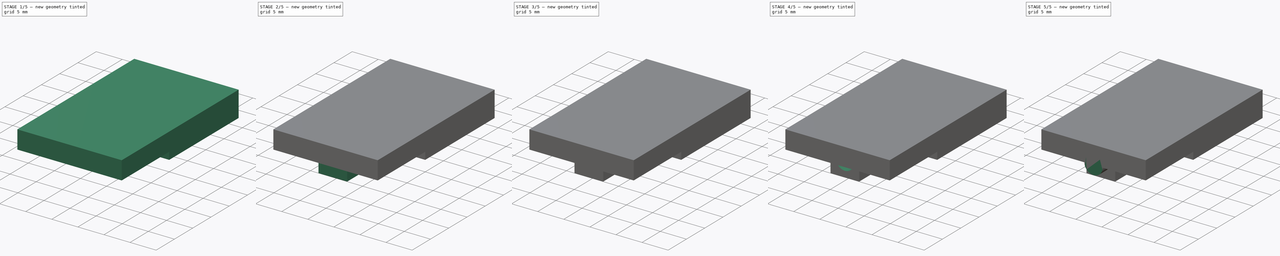
[diagram: build sequence overview — one tinted view per stage of 5, left to right]
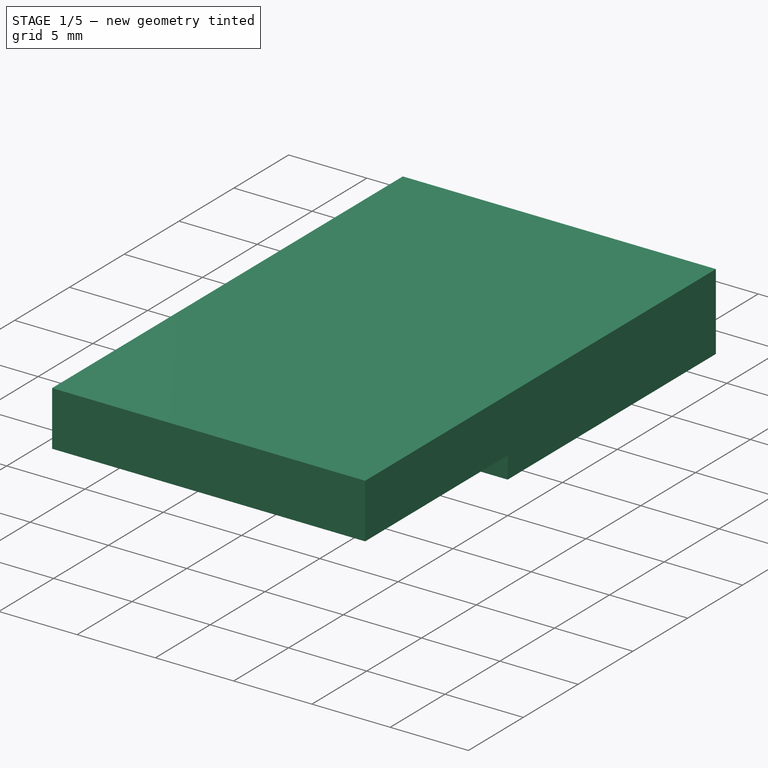
[diagram: stage 1 of 5 — iso view after this stage's code; geometry added in this stage tinted green]
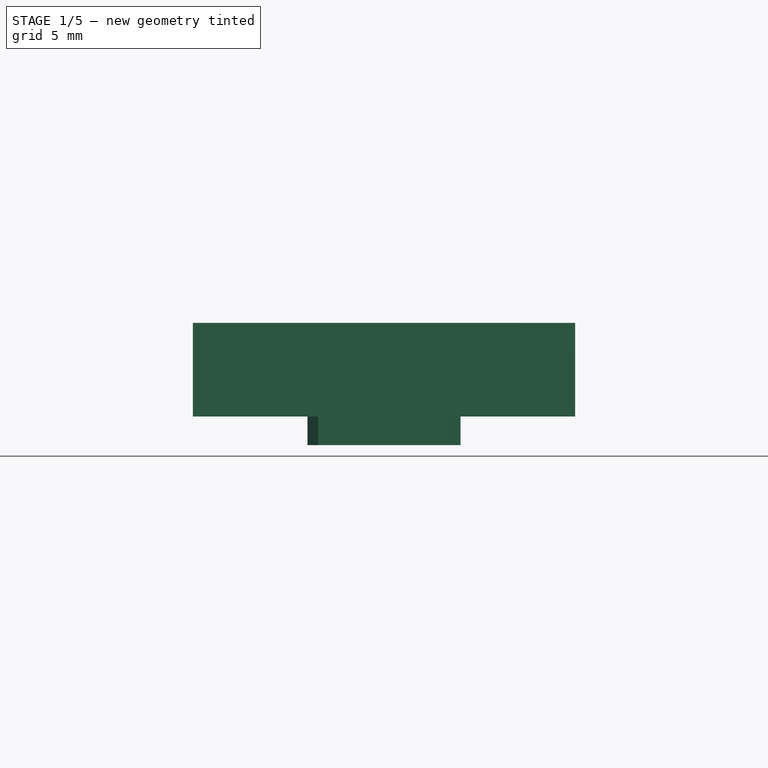
[diagram: stage 1 of 5 — front view after this stage's code; geometry added in this stage tinted green]
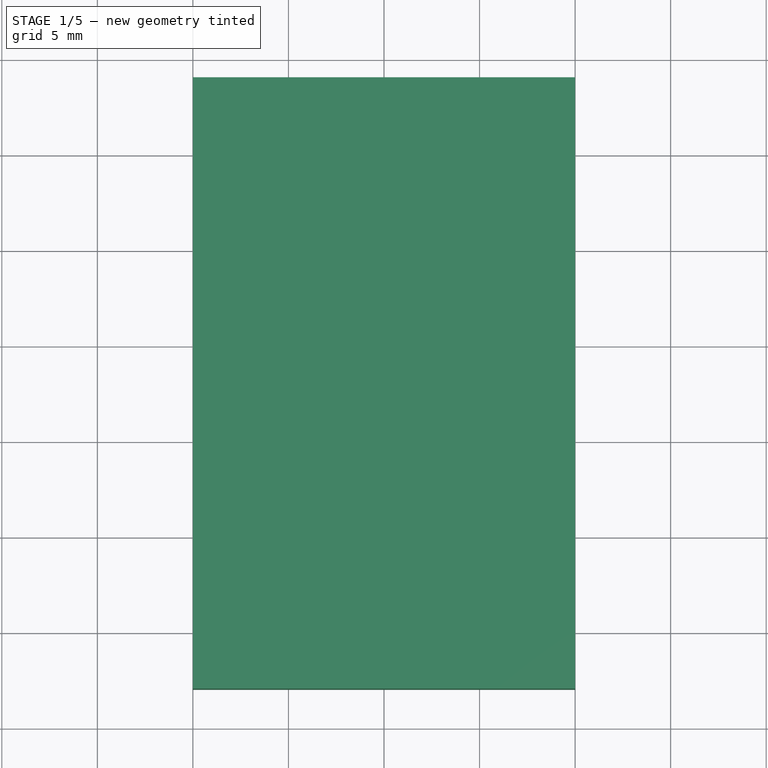
[diagram: stage 1 of 5 — top view after this stage's code; geometry added in this stage tinted green]
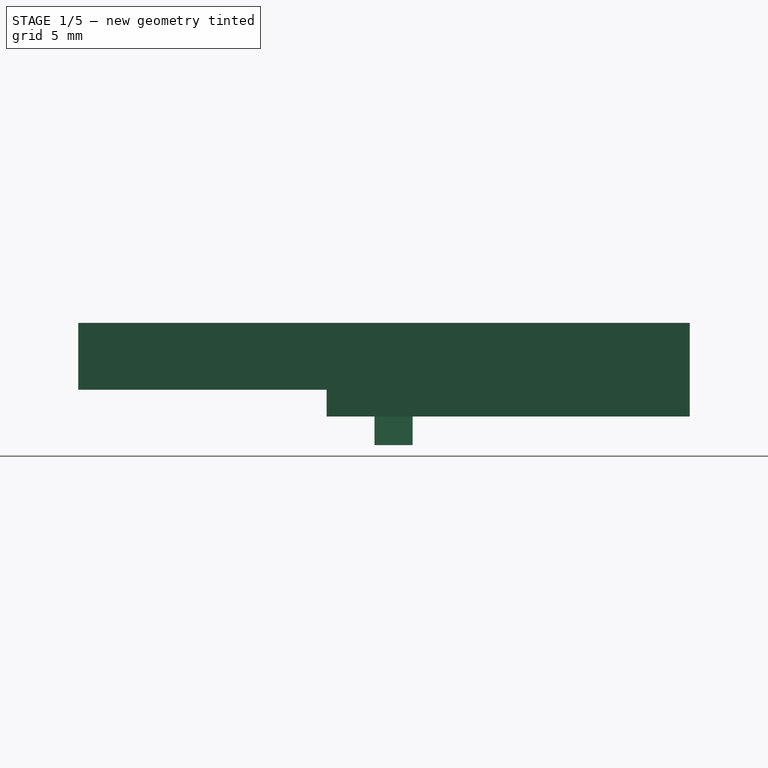
[diagram: stage 1 of 5 — right view after this stage's code; geometry added in this stage tinted green]
FCSTD DOCUMENT  (FreeCAD 0.18R16146 (Git))
Label: mic
License: All rights reserved
LicenseURL: http://en.wikipedia.org/wiki/All_rights_reserved
objects: Part::Cylinder×6, Sketcher::SketchObject×5, Part::Extrusion×3, Part::Revolution×2, Part::MultiFuse×2, Part::Thickness×1, Part::Box×1, Part::Cut×1, PartDesign::FeatureBase×1, PartDesign::Body×1
note: 23 computed .brp shape members not serialized (recipe doc carries the construction recipe); baked Part::Feature solids carry a one-line shape summary decoded from their .brp

FEATURE [Sketcher::SketchObject] Sketch003
  Placement = pos=(0,0,10) rot=(0,0,1;0rad)
  sketch-geometry (4):
    g0: LineSegment StartX=-4 StartY=-5.5 StartZ=0 EndX=4 EndY=-5.5 EndZ=0
    g1: LineSegment StartX=-3.44223 StartY=-7.5 StartZ=0 EndX=3.44725 EndY=-7.5 EndZ=0
    g2: LineSegment StartX=-4 StartY=-5.5 StartZ=0 EndX=-3.44223 EndY=-7.5 EndZ=0
    g3: LineSegment StartX=4 StartY=-5.5 StartZ=0 EndX=3.44725 EndY=-7.5 EndZ=0
  constraints (10):
    c: Horizontal(g0)
    c: Horizontal(g1)
    c: Coincident(g2,g0)
    c: Coincident(g2,g1)
    c: Coincident(g3,g0)
    c: Coincident(g3,g1)
    c: DistanceY(g1,g0) = 2
    c: DistanceX(g0) = 4
    c: DistanceY(g0) = -5.5
    c: DistanceX(g0,g0) = 8
FEATURE [Part::Extrusion] Extrude001
  Base = -> Sketch003
  Dir = (0,0,1)
  DirMode = 2
  FaceMakerClass = Part::FaceMakerBullseye
  LengthFwd = 0
  LengthRev = 5.8
  Placement = pos=(0,0,-4.6) rot=(0,0,1;0rad)
  Solid = true
  Symmetric = false
FEATURE [Sketcher::SketchObject] Sketch004
  Placement = pos=(20,0,0) rot=(0.57735,0.57735,0.57735;2.0944rad)
  sketch-geometry (6):
    g0: LineSegment StartX=-10 StartY=1.1 StartZ=0 EndX=9 EndY=1.1 EndZ=0
    g1: LineSegment StartX=-10 StartY=1.1 StartZ=0 EndX=-10 EndY=2.5 EndZ=0
    g2: LineSegment StartX=-10 StartY=2.5 StartZ=0 EndX=-23 EndY=2.5 EndZ=0
    g3: LineSegment StartX=-23 StartY=2.5 StartZ=0 EndX=-23 EndY=6 EndZ=0
    g4: LineSegment StartX=-23 StartY=6 StartZ=0 EndX=9 EndY=6 EndZ=0
    g5: LineSegment StartX=9 StartY=6 StartZ=0 EndX=9 EndY=1.1 EndZ=0
  constraints (15):
    c: Horizontal(g0)
    c: DistanceX(g0) = -10
    c: DistanceY(g0) = 1.1
    c: Coincident(g1,g0)
    c: Vertical(g1)
    c: Coincident(g2,g1)
    c: Horizontal(g2)
    c: DistanceY(g-1,g1) = 2.5
    c: Coincident(g3,g2)
    c: Vertical(g3)
    c: Coincident(g4,g3)
    c: Horizontal(g4)
    c: Coincident(g5,g4)
    c: Coincident(g5,g0)
    c: Vertical(g5)
FEATURE [Part::Extrusion] Extrude002  label="sub print mask"
  Base = -> Sketch004
  Dir = (1,-1e-16,2e-16)
  DirMode = 2
  FaceMakerClass = Part::FaceMakerBullseye
  LengthFwd = 0
  LengthRev = 20
  Placement = pos=(-10,0,0) rot=(0,0,1;0rad)
  Solid = true
  Symmetric = false
FEATURE [PartDesign::FeatureBase] Clone
  BaseFeature = -> Extrude002
  Placement = pos=(-10,0,0) rot=(0,0,1;0rad)
FEATURE [PartDesign::Body] Body  label="union print mask"
  Group = -> [Clone]
  Origin = -> Origin
  Placement = pos=(0,0.3,0) rot=(0,0,1;0rad)
  Tip = -> Clone
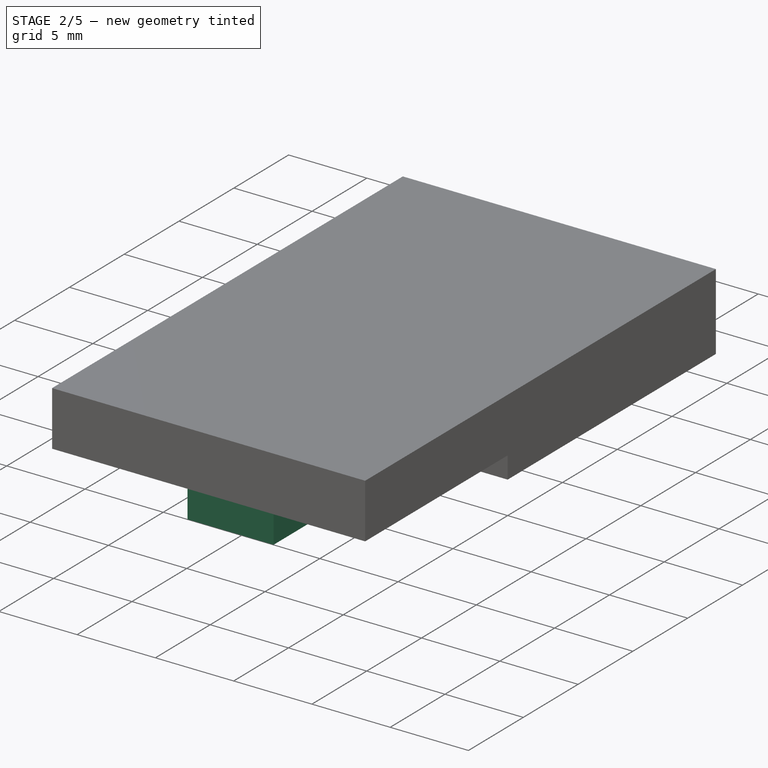
[diagram: stage 2 of 5 — iso view after this stage's code; geometry added in this stage tinted green]
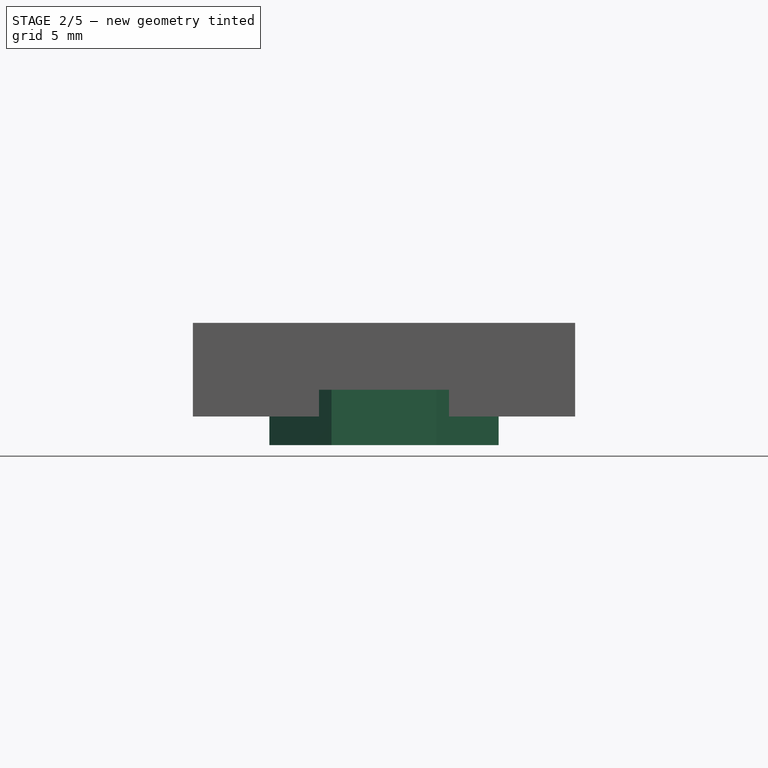
[diagram: stage 2 of 5 — front view after this stage's code; geometry added in this stage tinted green]
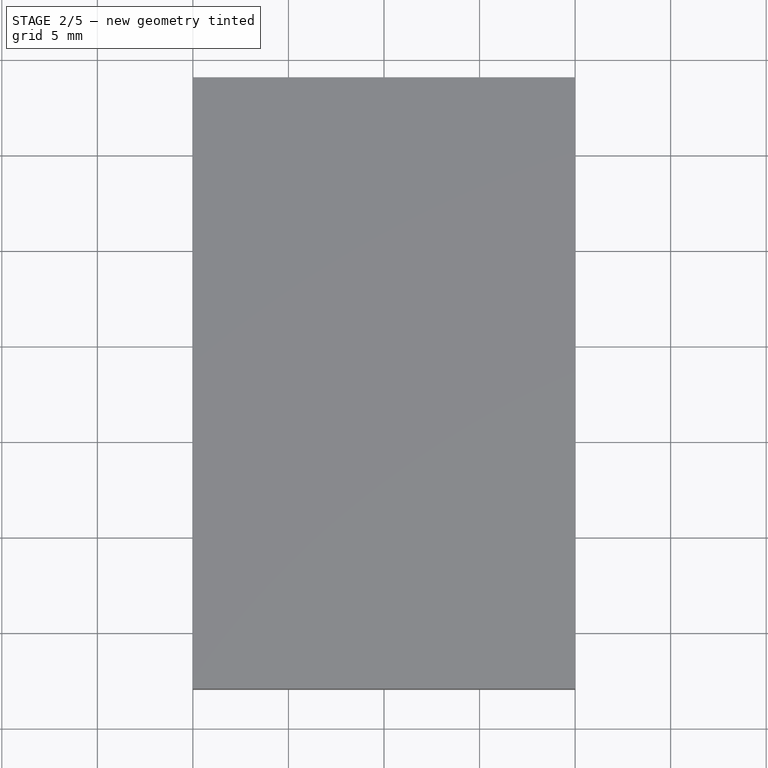
[diagram: stage 2 of 5 — top view after this stage's code; geometry added in this stage tinted green]
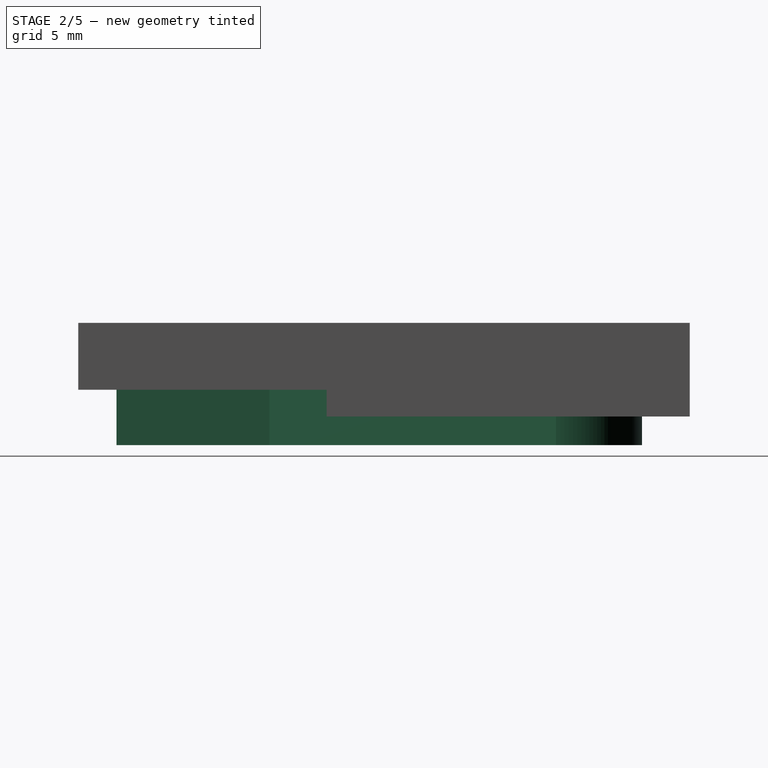
[diagram: stage 2 of 5 — right view after this stage's code; geometry added in this stage tinted green]
FEATURE [Part::Cylinder] Cylinder003  label="mic001"
  Angle = 360
  AttacherType = Attacher::AttachEngine3D
  Height = 5.8
  Placement = pos=(0,2,-0.4) rot=(0,0,1;0rad)
  Radius = 4.5
FEATURE [Sketcher::SketchObject] Sketch001
  Placement = pos=(0,0,10) rot=(0,0,1;0rad)
  sketch-geometry (8):
    g0: LineSegment StartX=-6 StartY=2 StartZ=0 EndX=-2.75 EndY=-13 EndZ=0
    g1: LineSegment StartX=6 StartY=2 StartZ=0 EndX=2.75 EndY=-13 EndZ=0
    g2: LineSegment StartX=5 StartY=2 StartZ=0 EndX=1.75 EndY=-13 EndZ=0
    g3: LineSegment StartX=2.75 StartY=-13 StartZ=0 EndX=1.75 EndY=-13 EndZ=0
    g4: LineSegment StartX=5 StartY=2 StartZ=0 EndX=6 EndY=2 EndZ=0
    g5: LineSegment StartX=-6 StartY=2 StartZ=0 EndX=-5 EndY=2 EndZ=0
    g6: LineSegment StartX=-2.75 StartY=-13 StartZ=0 EndX=-1.75 EndY=-13 EndZ=0
    g7: LineSegment StartX=-1.75 StartY=-13 StartZ=0 EndX=-5 EndY=2 EndZ=0
  constraints (23):
    c: DistanceX(g0) = -6
    c: DistanceY(g0) = 2
    c: DistanceX(g0,g1) = 12
    c: DistanceY(g1,g1) = -15
    c: DistanceX(g-1,g1) = 2.75
    c: DistanceX(g0,g1) = 5.5
    c: Coincident(g3,g1)
    c: Coincident(g3,g2)
    c: Horizontal(g3)
    c: Coincident(g4,g2)
    c: Coincident(g4,g1)
    c: Horizontal(g4)
    c: Coincident(g5,g0)
    c: Horizontal(g5)
    c: Coincident(g6,g0)
    c: Horizontal(g6)
    c: Coincident(g7,g6)
    c: Coincident(g7,g5)
    c: DistanceX(g2,g1) = 1
    c: DistanceX(g0,g6) = 1
    c: DistanceX(g2,g1) = 1
    c: DistanceX(g0,g5) = 1
    c: DistanceY(g0,g0) = 15
FEATURE [Part::Extrusion] Extrude
  Base = -> Sketch001
  Dir = (0,0,1)
  DirMode = 2
  FaceMakerClass = Part::FaceMakerBullseye
  LengthFwd = 0
  LengthRev = 5.8
  Placement = pos=(0,0,-4.6) rot=(0,0,1;0rad)
  Solid = true
  Symmetric = false
FEATURE [Part::Box] Box  label="Cube"
  AttacherType = Attacher::AttachEngine3D
  Height = 5.8
  Length = 10
  Placement = pos=(-2.75,-11,-0.4) rot=(0,0,1;4.71239rad)
  Width = 5.5
FEATURE [Part::Cylinder] Cylinder004  label="Cylinder001"
  Angle = 360
  AttacherType = Attacher::AttachEngine3D
  Height = 5.8
  Placement = pos=(0,-6.5,-0.4) rot=(0,0,1;0rad)
  Radius = 2.6
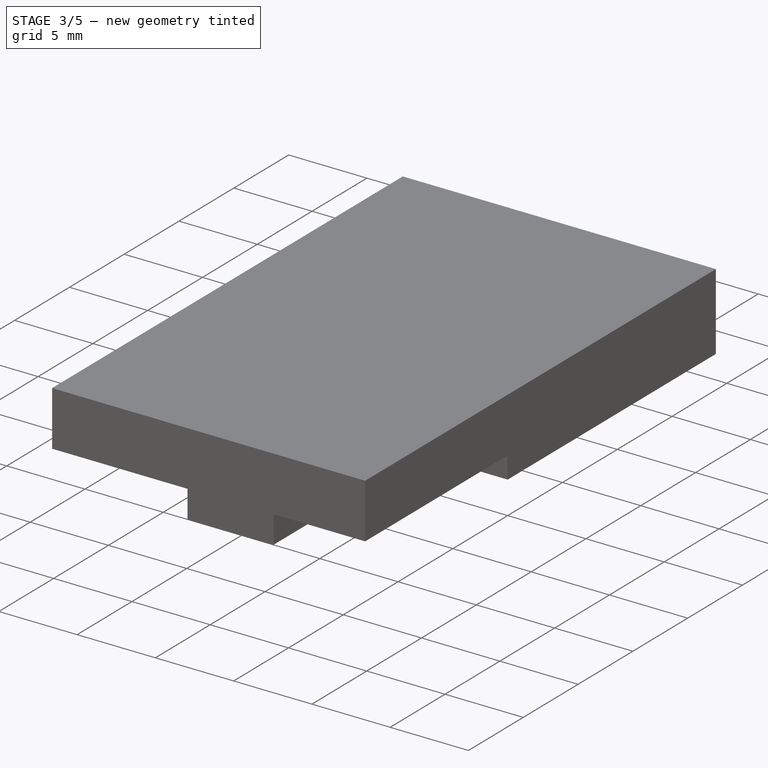
[diagram: stage 3 of 5 — iso view after this stage's code; geometry added in this stage tinted green]
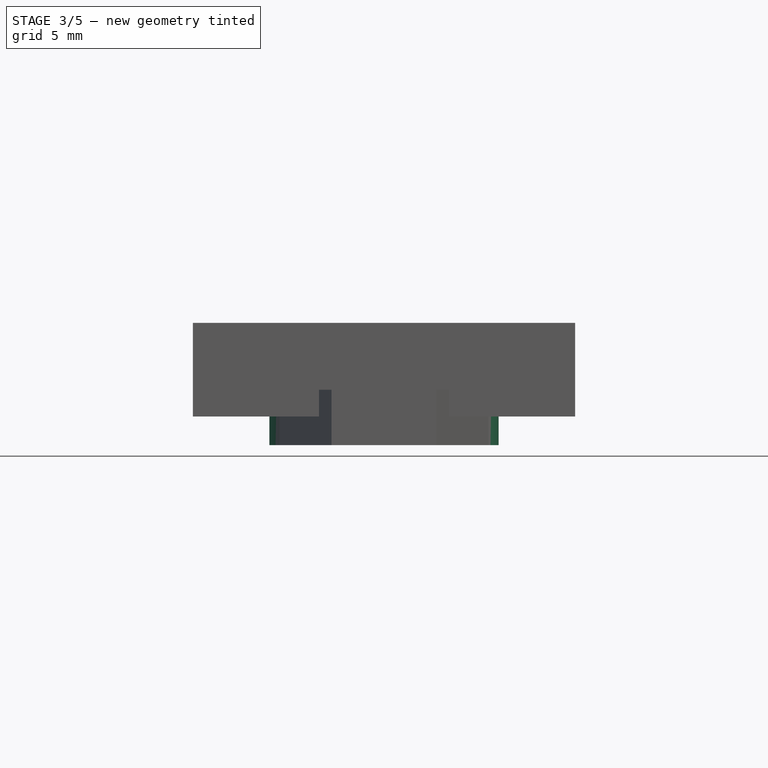
[diagram: stage 3 of 5 — front view after this stage's code; geometry added in this stage tinted green]
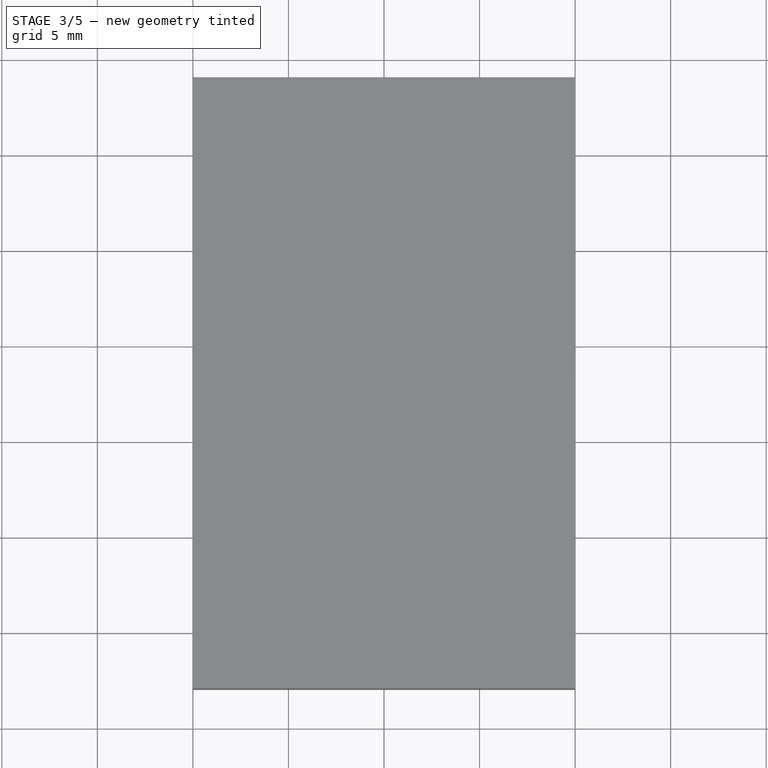
[diagram: stage 3 of 5 — top view after this stage's code; geometry added in this stage tinted green]
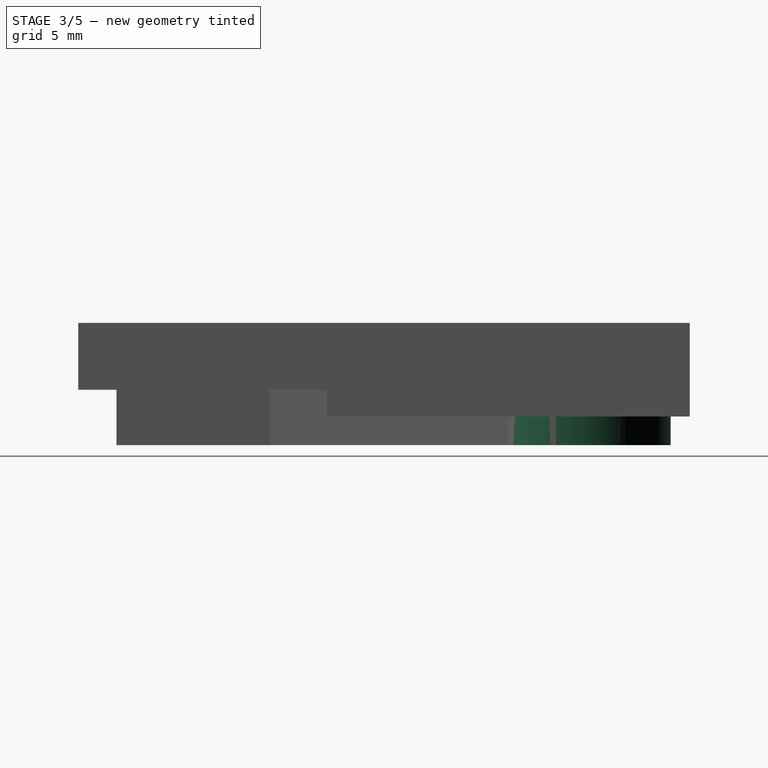
[diagram: stage 3 of 5 — right view after this stage's code; geometry added in this stage tinted green]
FEATURE [Part::Thickness] Thickness001
  Faces = -> Cylinder003 [Face2,Face3]
  Intersection = false
  Join = 0
  Mode = 0
  SelfIntersection = false
  Value = 1.5
FEATURE [Part::Cylinder] Cylinder006  label="sub mic"
  Angle = 360
  AttacherType = Attacher::AttachEngine3D
  Height = 5
  Placement = pos=(0,2,0) rot=(0,0,1;0rad)
  Radius = 5.1
FEATURE [Part::MultiFuse] Fusion001
  Shapes = -> [Cylinder004,Box,Extrude,Thickness001,Extrude001]
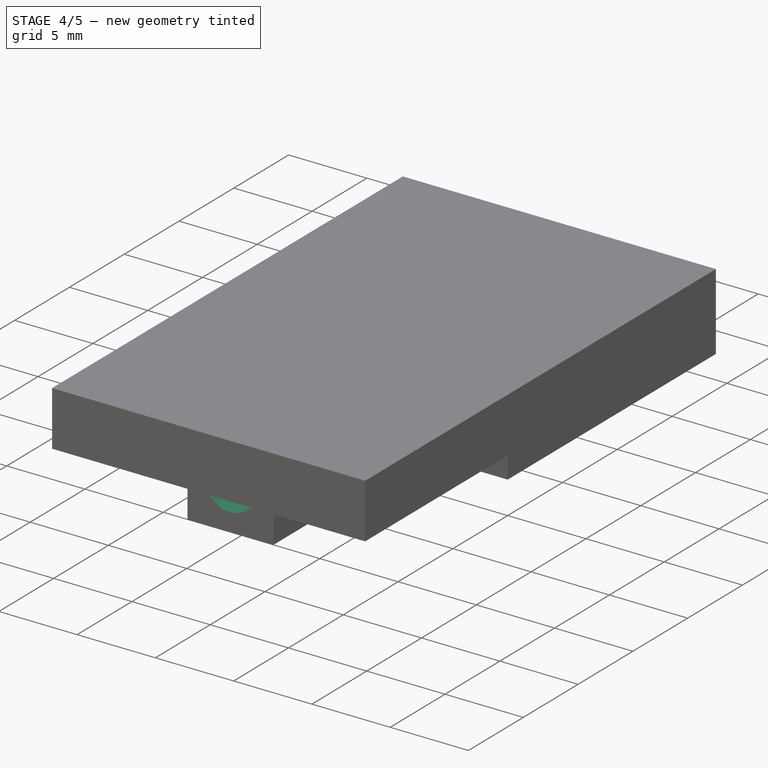
[diagram: stage 4 of 5 — iso view after this stage's code; geometry added in this stage tinted green]
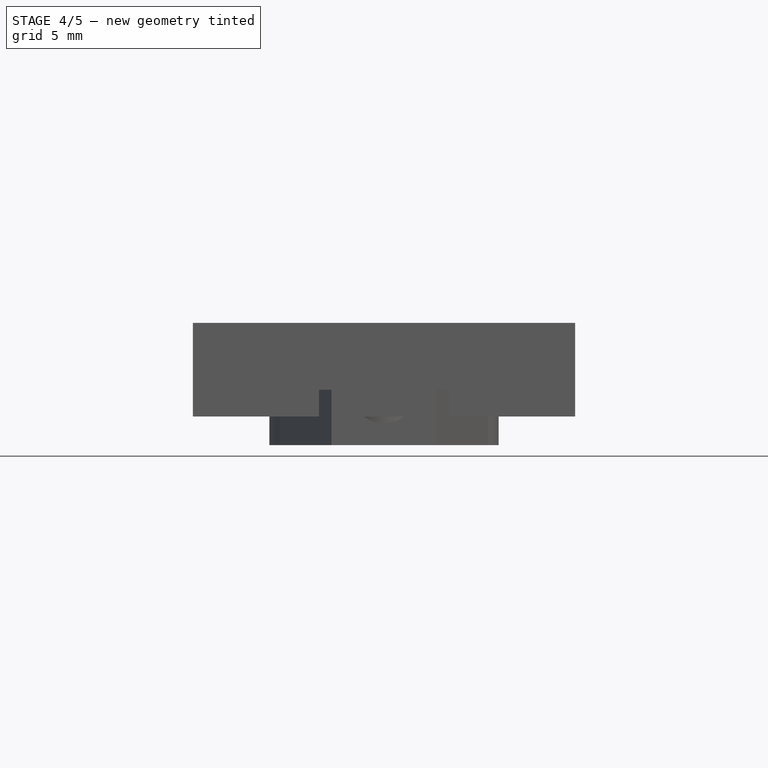
[diagram: stage 4 of 5 — front view after this stage's code; geometry added in this stage tinted green]
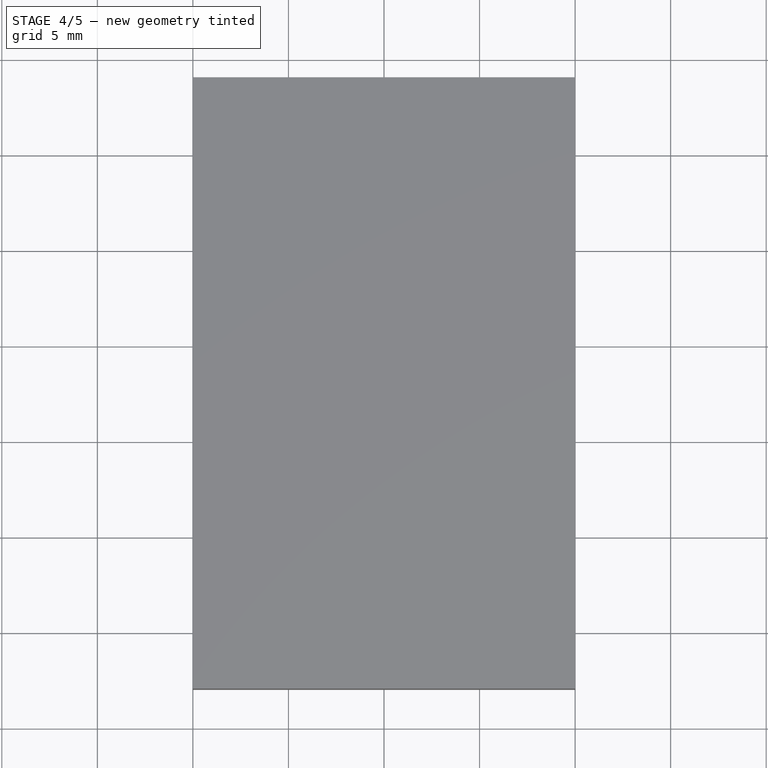
[diagram: stage 4 of 5 — top view after this stage's code; geometry added in this stage tinted green]
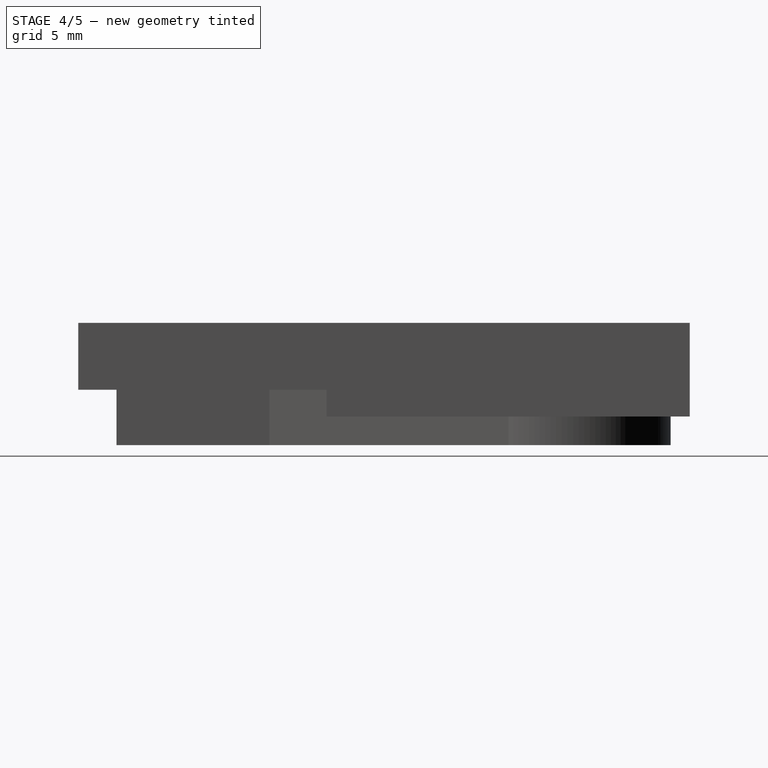
[diagram: stage 4 of 5 — right view after this stage's code; geometry added in this stage tinted green]
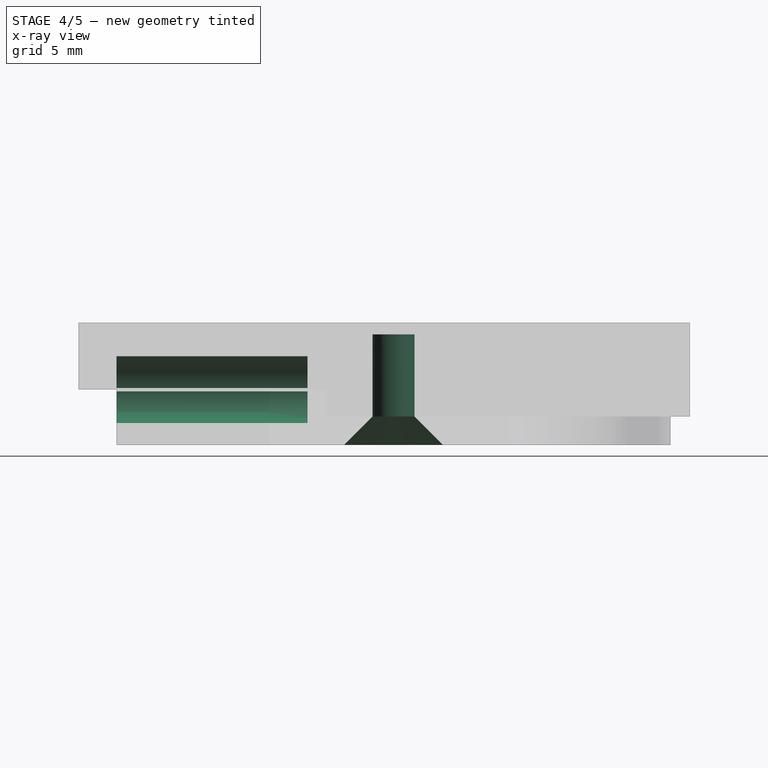
[diagram: stage 4 of 5 — x-ray composite at the right view; earlier geometry ghosted, this stage's added geometry solid]
FEATURE [Sketcher::SketchObject] Sketch002
  Placement = pos=(0,-30,0) rot=(1,0,0;1.5708rad)
  sketch-geometry (5):
    g0: LineSegment StartX=0 StartY=0 StartZ=0 EndX=2.6 EndY=0 EndZ=0
    g1: LineSegment StartX=0 StartY=6 StartZ=0 EndX=1.1 EndY=6 EndZ=0
    g2: LineSegment StartX=1.1 StartY=6 StartZ=0 EndX=1.1 EndY=1.5 EndZ=0
    g3: LineSegment StartX=1.1 StartY=1.5 StartZ=0 EndX=2.6 EndY=0 EndZ=0
    g4: LineSegment StartX=0 StartY=6 StartZ=0 EndX=0 EndY=0 EndZ=0
  constraints (14):
    c: Coincident(g0,g-1)
    c: PointOnObject(g0,g-1)
    c: Horizontal(g1)
    c: Vertical(g2)
    c: DistanceY(g2,g2) = 4.5
    c: DistanceX(g1,g2) = 1.1
    c: Coincident(g2,g1)
    c: Coincident(g3,g2)
    c: Coincident(g3,g0)
    c: DistanceX(g0,g0) = 2.6
    c: Angle(g3,g0,g0) = 0.785398
    c: Coincident(g4,g1)
    c: Coincident(g4,g0)
    c: Vertical(g4)
FEATURE [Part::Revolution] Revolve001  label="sub screw"
  Angle = 360
  Axis = (0,0,1)
  Base = (0,-30,0)
  FaceMakerClass = Part::FaceMakerBullseye
  Placement = pos=(0,23.5,-0.4) rot=(0,0,1;0rad)
  Solid = true
  Source = -> Sketch002
  Symmetric = false
FEATURE [Part::Cylinder] Cylinder005  label="sub cylinder"
  Angle = 360
  AttacherType = Attacher::AttachEngine3D
  Height = 10
  Placement = pos=(0,-11,2.5) rot=(1,0,0;1.5708rad)
  Radius = 1.75
FEATURE [Part::MultiFuse] Fusion
  Shapes = -> [Cylinder006,Cylinder005,Revolve001]
FEATURE [Part::Cut] Cut
  Base = -> Fusion001
  Tool = -> Fusion
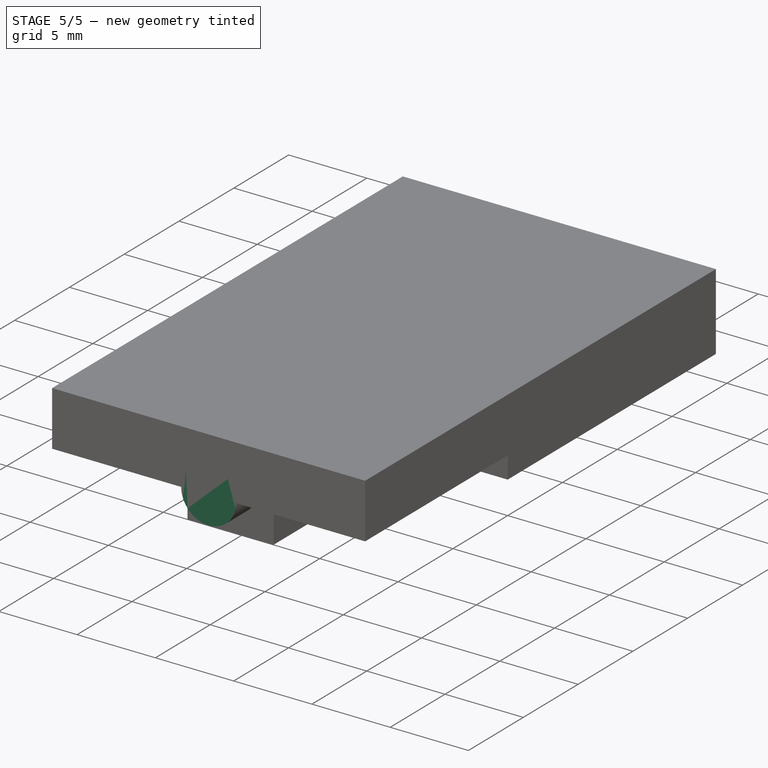
[diagram: stage 5 of 5 — iso view after this stage's code; geometry added in this stage tinted green]
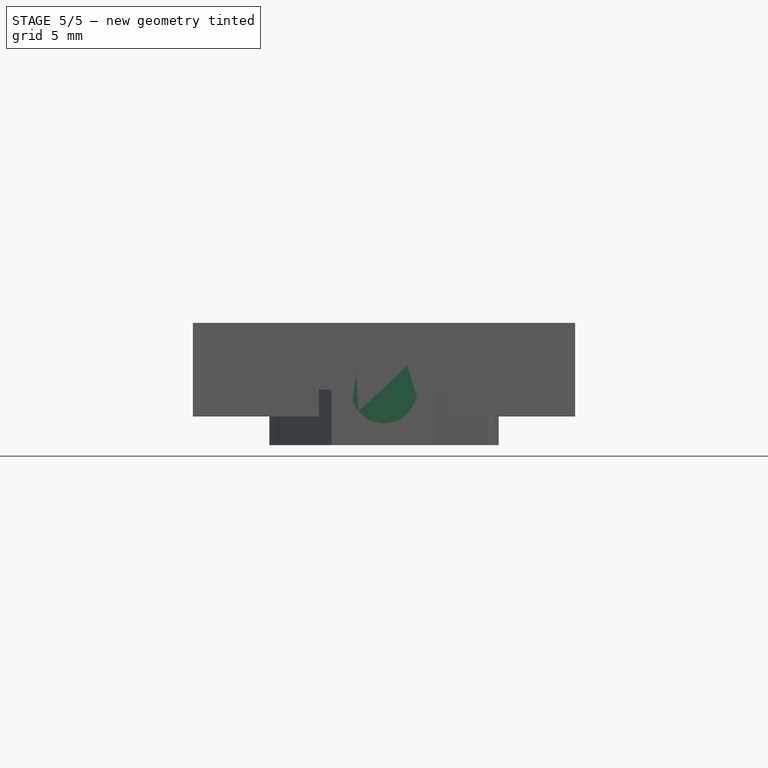
[diagram: stage 5 of 5 — front view after this stage's code; geometry added in this stage tinted green]
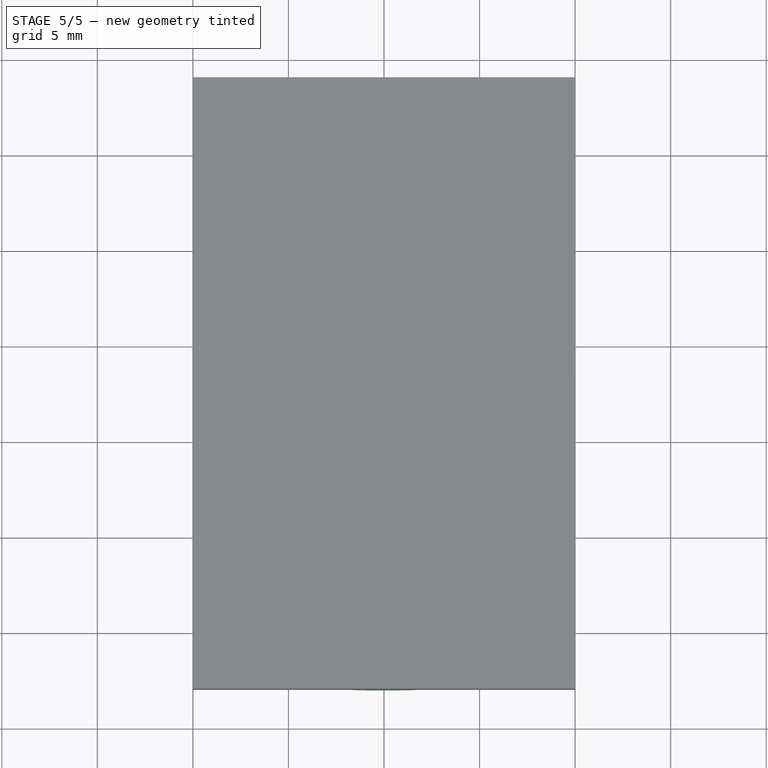
[diagram: stage 5 of 5 — top view after this stage's code; geometry added in this stage tinted green]
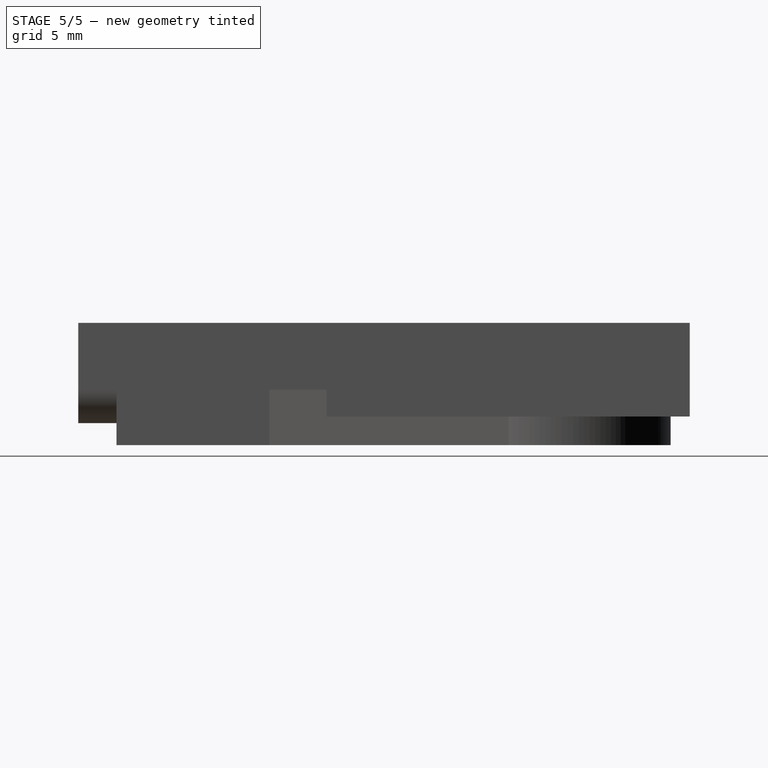
[diagram: stage 5 of 5 — right view after this stage's code; geometry added in this stage tinted green]
FEATURE [Part::Cylinder] Cylinder  label="mic"
  Angle = 360
  AttacherType = Attacher::AttachEngine3D
  Height = 5
  Placement = pos=(0,2,0) rot=(0,0,1;0rad)
  Radius = 5
FEATURE [Sketcher::SketchObject] Sketch
  Placement = pos=(0,0,0) rot=(-1,0,0;4.71239rad)
  sketch-geometry (5):
    g0: LineSegment StartX=0 StartY=0 StartZ=0 EndX=2.5 EndY=0 EndZ=0
    g1: LineSegment StartX=0 StartY=5 StartZ=0 EndX=1 EndY=5 EndZ=0
    g2: LineSegment StartX=1 StartY=5 StartZ=0 EndX=1 EndY=1.5 EndZ=0
    g3: LineSegment StartX=1 StartY=1.5 StartZ=0 EndX=2.5 EndY=0 EndZ=0
    g4: LineSegment StartX=0 StartY=5 StartZ=0 EndX=0 EndY=0 EndZ=0
  constraints (14):
    c: Coincident(g0,g-1)
    c: PointOnObject(g0,g-1)
    c: Horizontal(g1)
    c: Vertical(g2)
    c: DistanceY(g2,g2) = 3.5
    c: DistanceX(g1,g2) = 1
    c: Coincident(g2,g1)
    c: Coincident(g3,g2)
    c: Coincident(g3,g0)
    c: DistanceX(g0,g0) = 2.5
    c: Angle(g3,g0,g0) = 0.785398
    c: Coincident(g4,g1)
    c: Coincident(g4,g0)
    c: Vertical(g4)
FEATURE [Part::Revolution] Revolve  label="screw"
  Angle = 360
  Axis = (0,0,1)
  Base = (0,0,0)
  FaceMakerClass = Part::FaceMakerBullseye
  Placement = pos=(0,-6.5,-0.4) rot=(0,0,1;0rad)
  Solid = true
  Source = -> Sketch
  Symmetric = false
FEATURE [Part::Cylinder] Cylinder001  label="Cylinder"
  Angle = 360
  AttacherType = Attacher::AttachEngine3D
  Height = 10
  Placement = pos=(0,-13,2.5) rot=(1,0,0;1.5708rad)
  Radius = 1.75
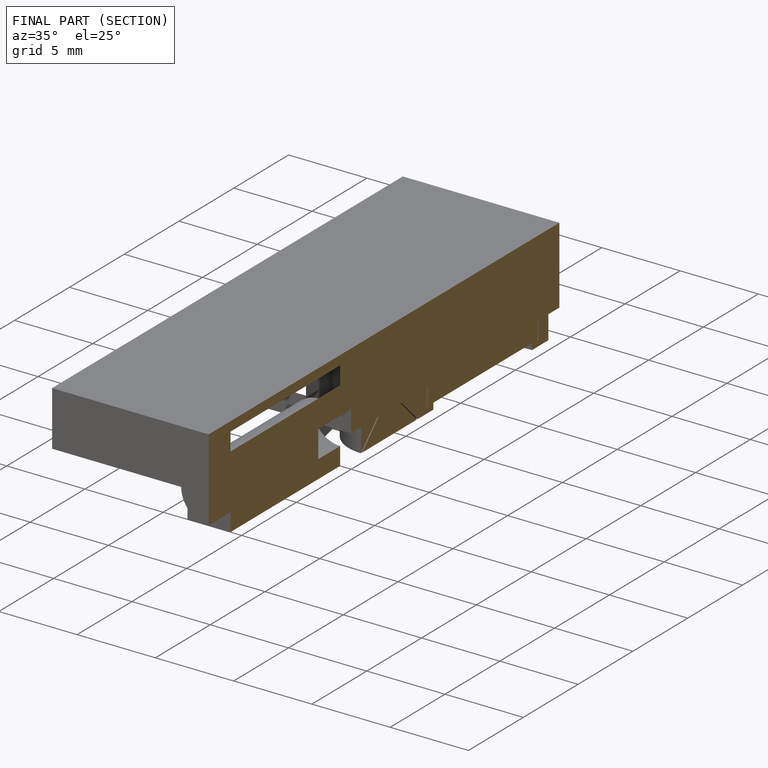
[diagram: finished part — half-section view (interior)]
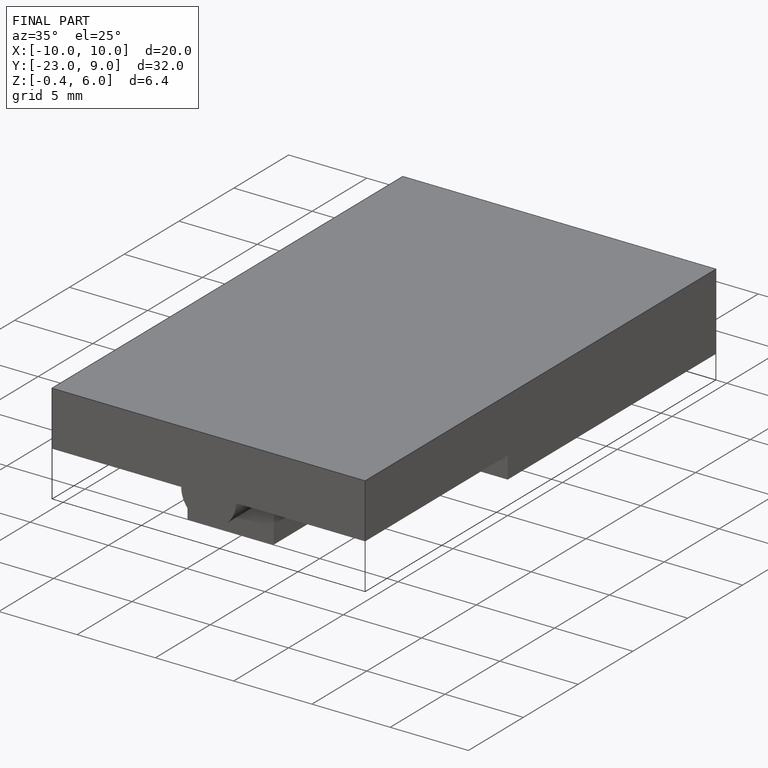
[diagram: finished part — iso view with bounding-box wireframe]
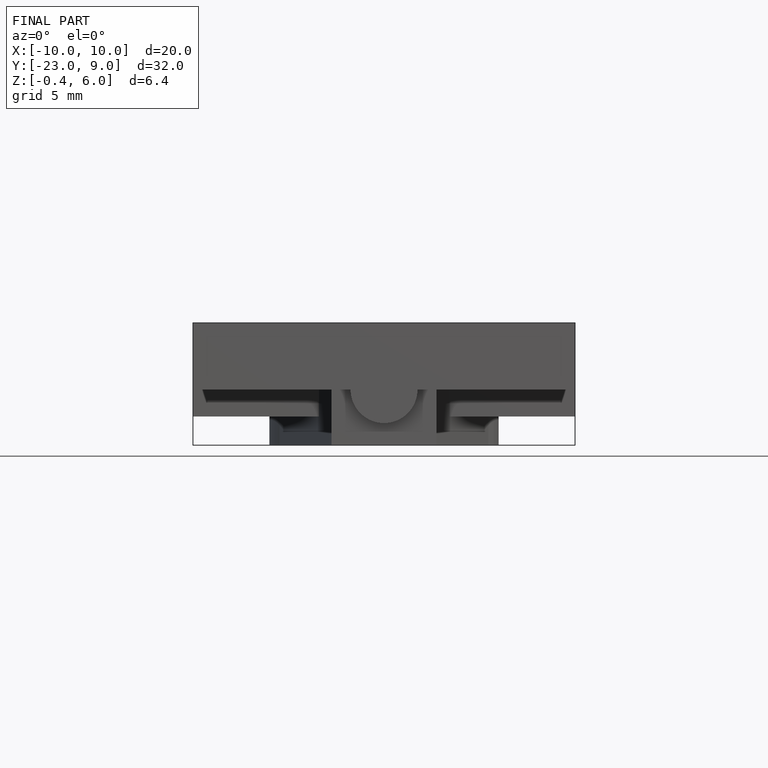
[diagram: finished part — front view with bounding-box wireframe]
